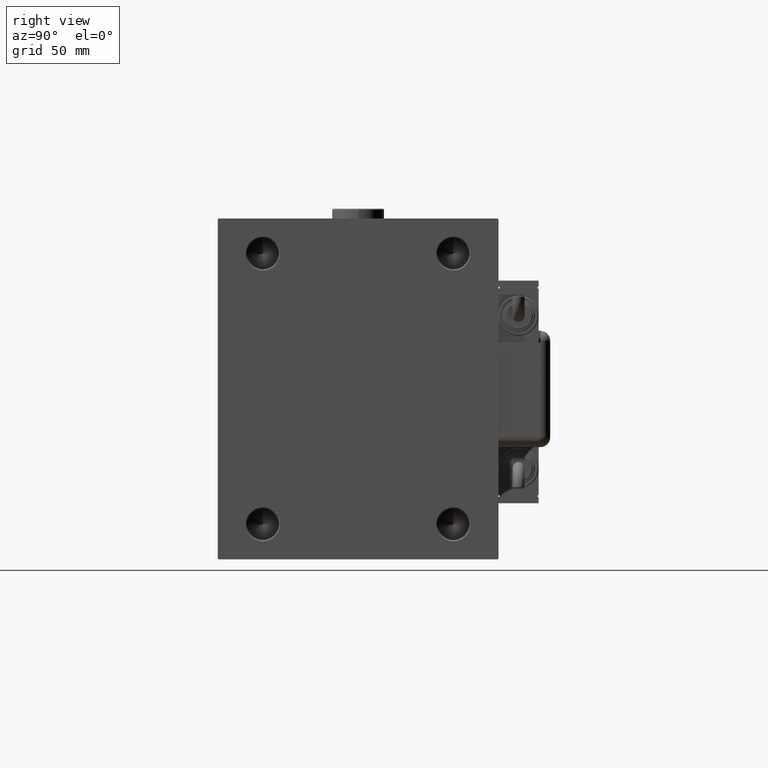
[diagram: clean part render]
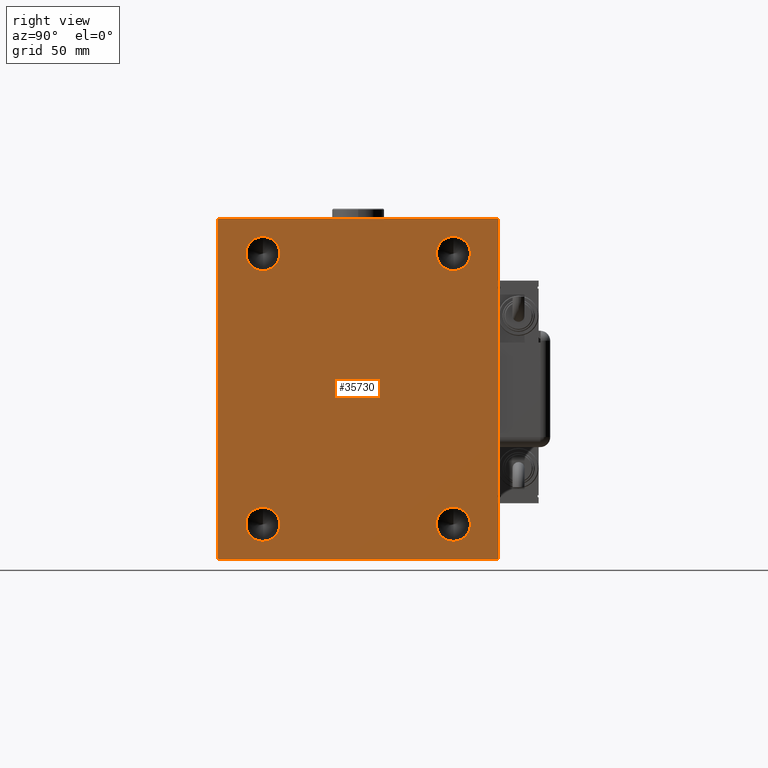
[diagram: same view with one face highlighted and labeled with its STEP entity id]
A machine part, right view. The second image highlights one B-rep face of the part: STEP entity #35730.
In plain terms, the highlighted planar face has unit normal (1, 0, 0).
Its self-contained STEP definition (entity closure, byte-faithful):
#68 = VERTEX_POINT ( 'NONE', #50883 ) ;
#1248 = CARTESIAN_POINT ( 'NONE',  ( 155.0000000000000000, 47.50000000000000000, -67.50000000000001421 ) ) ;
#1260 = AXIS2_PLACEMENT_3D ( 'NONE', #25930, #11568, #45406 ) ;
#1640 = CARTESIAN_POINT ( 'NONE',  ( 155.0000000000000000, -69.49999999999997158, 84.99999999999998579 ) ) ;
#1675 = ORIENTED_EDGE ( 'NONE', *, *, #59738, .F. ) ;
#1814 = EDGE_LOOP ( 'NONE', ( #36083, #14862 ) ) ;
#1871 = VERTEX_POINT ( 'NONE', #9417 ) ;
#2211 = CIRCLE ( 'NONE', #37909, 8.500000000000007105 ) ;
#2270 = DIRECTION ( 'NONE',  ( 0.000000000000000000, -1.000000000000000000, -1.982541115402065110E-16 ) ) ;
#3760 = DIRECTION ( 'NONE',  ( 1.000000000000000000, -0.000000000000000000, -0.000000000000000000 ) ) ;
#3966 = CARTESIAN_POINT ( 'NONE',  ( 155.0000000000000000, 47.50000000000000000, 58.99999999999997158 ) ) ;
#4008 = EDGE_LOOP ( 'NONE', ( #40196, #59347 ) ) ;
#4071 = EDGE_CURVE ( 'NONE', #5518, #34108, #43446, .T. ) ;
#4369 = CARTESIAN_POINT ( 'NONE',  ( 155.0000000000000000, -47.50000000000000000, 76.00000000000001421 ) ) ;
#4483 = DIRECTION ( 'NONE',  ( 1.000000000000000000, -0.000000000000000000, -0.000000000000000000 ) ) ;
#4514 = VECTOR ( 'NONE', #9899, 999.9999999999998863 ) ;
#4775 = CARTESIAN_POINT ( 'NONE',  ( 155.0000000000000000, 77.24999999999904787, -77.25000000000119371 ) ) ;
#5518 = VERTEX_POINT ( 'NONE', #5893 ) ;
#5893 = CARTESIAN_POINT ( 'NONE',  ( 155.0000000000000000, 70.00000000000001421, -84.50000000000000000 ) ) ;
#5994 = CARTESIAN_POINT ( 'NONE',  ( 155.0000000000000000, 77.25000000000289901, 77.24999999999647571 ) ) ;
#6742 = VECTOR ( 'NONE', #15320, 1000.000000000000000 ) ;
#6898 = EDGE_CURVE ( 'NONE', #55050, #34562, #18503, .T. ) ;
#7391 = VERTEX_POINT ( 'NONE', #9600 ) ;
#7514 = VECTOR ( 'NONE', #21631, 1000.000000000000000 ) ;
#8005 = CARTESIAN_POINT ( 'NONE',  ( 155.0000000000000000, 47.50000000000000000, -59.00000000000000000 ) ) ;
#8835 = DIRECTION ( 'NONE',  ( 1.000000000000000000, -0.000000000000000000, -0.000000000000000000 ) ) ;
#9417 = CARTESIAN_POINT ( 'NONE',  ( 155.0000000000000000, -47.50000000000000000, 58.99999999999997158 ) ) ;
#9600 = CARTESIAN_POINT ( 'NONE',  ( 155.0000000000000000, 69.50000000000000000, 85.00000000000001421 ) ) ;
#9884 = VERTEX_POINT ( 'NONE', #1640 ) ;
#9899 = DIRECTION ( 'NONE',  ( -0.000000000000000000, 0.7071067811865574537, 0.7071067811865376918 ) ) ;
#10250 = AXIS2_PLACEMENT_3D ( 'NONE', #26852, #41547, #25800 ) ;
#10501 = EDGE_CURVE ( 'NONE', #50844, #30552, #31868, .T. ) ;
#11233 = CARTESIAN_POINT ( 'NONE',  ( 155.0000000000000000, -77.25000000000098055, -77.24999999999883471 ) ) ;
#11413 = CARTESIAN_POINT ( 'NONE',  ( 155.0000000000000000, -77.24999999999803890, 77.25000000000234479 ) ) ;
#11568 = DIRECTION ( 'NONE',  ( 1.000000000000000000, -0.000000000000000000, -0.000000000000000000 ) ) ;
#11740 = CARTESIAN_POINT ( 'NONE',  ( 155.0000000000000000, 47.50000000000000000, -76.00000000000004263 ) ) ;
#11782 = DIRECTION ( 'NONE',  ( 1.000000000000000000, -0.000000000000000000, -0.000000000000000000 ) ) ;
#12184 = FACE_BOUND ( 'NONE', #45615, .T. ) ;
#12368 = CARTESIAN_POINT ( 'NONE',  ( 155.0000000000000000, 47.50000000000000000, 76.00000000000001421 ) ) ;
#13801 = EDGE_CURVE ( 'NONE', #22470, #43213, #51241, .T. ) ;
#14862 = ORIENTED_EDGE ( 'NONE', *, *, #43225, .F. ) ;
#15214 = EDGE_CURVE ( 'NONE', #34108, #7391, #34761, .T. ) ;
#15320 = DIRECTION ( 'NONE',  ( 0.000000000000000000, 1.000000000000000000, 0.000000000000000000 ) ) ;
#15543 = AXIS2_PLACEMENT_3D ( 'NONE', #53356, #4483, #18870 ) ;
#16182 = VECTOR ( 'NONE', #46914, 1000.000000000000000 ) ;
#16427 = ORIENTED_EDGE ( 'NONE', *, *, #28454, .T. ) ;
#16497 = CARTESIAN_POINT ( 'NONE',  ( 155.0000000000000000, -47.50000000000000000, -59.00000000000000000 ) ) ;
#17063 = CIRCLE ( 'NONE', #25203, 8.500000000000007105 ) ;
#17606 = AXIS2_PLACEMENT_3D ( 'NONE', #1248, #11782, #59055 ) ;
#17726 = EDGE_CURVE ( 'NONE', #9884, #68, #55151, .T. ) ;
#17803 = CIRCLE ( 'NONE', #53491, 8.500000000000007105 ) ;
#18426 = CARTESIAN_POINT ( 'NONE',  ( 155.0000000000000000, -47.50000000000000000, 67.49999999999998579 ) ) ;
#18503 = CIRCLE ( 'NONE', #54207, 8.500000000000007105 ) ;
#18870 = DIRECTION ( 'NONE',  ( 0.000000000000000000, 0.000000000000000000, -1.000000000000000000 ) ) ;
#19338 = DIRECTION ( 'NONE',  ( 1.000000000000000000, -0.000000000000000000, -0.000000000000000000 ) ) ;
#19446 = ORIENTED_EDGE ( 'NONE', *, *, #4071, .T. ) ;
#19718 = CARTESIAN_POINT ( 'NONE',  ( 155.0000000000000000, 47.50000000000000000, 67.49999999999998579 ) ) ;
#19779 = LINE ( 'NONE', #54889, #6742 ) ;
#20445 = ORIENTED_EDGE ( 'NONE', *, *, #30321, .T. ) ;
#20811 = LINE ( 'NONE', #46015, #32472 ) ;
#20849 = ORIENTED_EDGE ( 'NONE', *, *, #17726, .T. ) ;
#21434 = VECTOR ( 'NONE', #38047, 1000.000000000000000 ) ;
#21631 = DIRECTION ( 'NONE',  ( 0.000000000000000000, -0.7071067811865672237, -0.7071067811865279218 ) ) ;
#22470 = VERTEX_POINT ( 'NONE', #12368 ) ;
#23822 = DIRECTION ( 'NONE',  ( 1.000000000000000000, -0.000000000000000000, -0.000000000000000000 ) ) ;
#24451 = DIRECTION ( 'NONE',  ( 0.000000000000000000, 0.000000000000000000, -1.000000000000000000 ) ) ;
#25203 = AXIS2_PLACEMENT_3D ( 'NONE', #18426, #8835, #57369 ) ;
#25800 = DIRECTION ( 'NONE',  ( 0.000000000000000000, 0.000000000000000000, -1.000000000000000000 ) ) ;
#25930 = CARTESIAN_POINT ( 'NONE',  ( 155.0000000000000000, 47.50000000000000000, 67.49999999999998579 ) ) ;
#26516 = EDGE_LOOP ( 'NONE', ( #42029, #1675 ) ) ;
#26814 = LINE ( 'NONE', #60663, #16182 ) ;
#26852 = CARTESIAN_POINT ( 'NONE',  ( 155.0000000000000000, 0.000000000000000000, 0.000000000000000000 ) ) ;
#27621 = CARTESIAN_POINT ( 'NONE',  ( 155.0000000000000000, -47.50000000000000000, -67.50000000000001421 ) ) ;
#28454 = EDGE_CURVE ( 'NONE', #7391, #9884, #20811, .T. ) ;
#28637 = CIRCLE ( 'NONE', #15543, 8.500000000000007105 ) ;
#30181 = CARTESIAN_POINT ( 'NONE',  ( 155.0000000000000000, -69.50000000000000000, -85.00000000000000000 ) ) ;
#30321 = EDGE_CURVE ( 'NONE', #68, #58106, #26814, .T. ) ;
#30552 = VERTEX_POINT ( 'NONE', #11740 ) ;
#31407 = VECTOR ( 'NONE', #54353, 999.9999999999998863 ) ;
#31659 = FACE_OUTER_BOUND ( 'NONE', #44031, .T. ) ;
#31868 = CIRCLE ( 'NONE', #17606, 8.500000000000007105 ) ;
#32083 = ORIENTED_EDGE ( 'NONE', *, *, #10501, .F. ) ;
#32472 = VECTOR ( 'NONE', #2270, 1000.000000000000000 ) ;
#33313 = ORIENTED_EDGE ( 'NONE', *, *, #15214, .T. ) ;
#33363 = DIRECTION ( 'NONE',  ( 1.000000000000000000, -0.000000000000000000, -0.000000000000000000 ) ) ;
#34108 = VERTEX_POINT ( 'NONE', #36281 ) ;
#34562 = VERTEX_POINT ( 'NONE', #39339 ) ;
#34761 = LINE ( 'NONE', #5994, #50276 ) ;
#35730 = ADVANCED_FACE ( 'NONE', ( #55914, #41232, #60707, #12184, #31659 ), #51139, .T. ) ;
#36083 = ORIENTED_EDGE ( 'NONE', *, *, #6898, .F. ) ;
#36281 = CARTESIAN_POINT ( 'NONE',  ( 155.0000000000000000, 70.00000000000000000, 84.49999999999997158 ) ) ;
#37909 = AXIS2_PLACEMENT_3D ( 'NONE', #27621, #33363, #56993 ) ;
#38047 = DIRECTION ( 'NONE',  ( 0.000000000000000000, -8.163404592832031500E-17, 1.000000000000000000 ) ) ;
#39339 = CARTESIAN_POINT ( 'NONE',  ( 155.0000000000000000, -47.50000000000000000, -76.00000000000004263 ) ) ;
#39442 = CIRCLE ( 'NONE', #43520, 8.500000000000007105 ) ;
#40196 = ORIENTED_EDGE ( 'NONE', *, *, #13801, .F. ) ;
#40557 = EDGE_CURVE ( 'NONE', #30552, #50844, #28637, .T. ) ;
#41232 = FACE_BOUND ( 'NONE', #26516, .T. ) ;
#41547 = DIRECTION ( 'NONE',  ( 1.000000000000000000, 0.000000000000000000, 0.000000000000000000 ) ) ;
#42029 = ORIENTED_EDGE ( 'NONE', *, *, #60893, .F. ) ;
#42712 = DIRECTION ( 'NONE',  ( 0.000000000000000000, 0.000000000000000000, -1.000000000000000000 ) ) ;
#43213 = VERTEX_POINT ( 'NONE', #3966 ) ;
#43225 = EDGE_CURVE ( 'NONE', #34562, #55050, #2211, .T. ) ;
#43298 = CARTESIAN_POINT ( 'NONE',  ( 155.0000000000000000, -47.50000000000000000, 67.49999999999998579 ) ) ;
#43446 = LINE ( 'NONE', #62930, #21434 ) ;
#43520 = AXIS2_PLACEMENT_3D ( 'NONE', #43298, #23822, #24451 ) ;
#44031 = EDGE_LOOP ( 'NONE', ( #16427, #20849, #20445, #58904, #61379, #60928, #19446, #33313 ) ) ;
#44233 = DIRECTION ( 'NONE',  ( 0.000000000000000000, 0.000000000000000000, -1.000000000000000000 ) ) ;
#45406 = DIRECTION ( 'NONE',  ( 0.000000000000000000, 0.000000000000000000, -1.000000000000000000 ) ) ;
#45615 = EDGE_LOOP ( 'NONE', ( #32083, #56210 ) ) ;
#46015 = CARTESIAN_POINT ( 'NONE',  ( 155.0000000000000000, 70.00000000000000000, 85.00000000000001421 ) ) ;
#46914 = DIRECTION ( 'NONE',  ( 0.000000000000000000, 0.000000000000000000, -1.000000000000000000 ) ) ;
#47429 = VERTEX_POINT ( 'NONE', #4369 ) ;
#48481 = DIRECTION ( 'NONE',  ( -0.000000000000000000, -0.7071067811865181518, 0.7071067811865769936 ) ) ;
#49003 = EDGE_CURVE ( 'NONE', #59321, #5518, #57788, .T. ) ;
#49286 = EDGE_CURVE ( 'NONE', #43213, #22470, #17803, .T. ) ;
#50276 = VECTOR ( 'NONE', #48481, 1000.000000000000000 ) ;
#50844 = VERTEX_POINT ( 'NONE', #8005 ) ;
#50883 = CARTESIAN_POINT ( 'NONE',  ( 155.0000000000000000, -70.00000000000000000, 84.49999999999998579 ) ) ;
#51139 = PLANE ( 'NONE',  #10250 ) ;
#51241 = CIRCLE ( 'NONE', #1260, 8.500000000000007105 ) ;
#53356 = CARTESIAN_POINT ( 'NONE',  ( 155.0000000000000000, 47.50000000000000000, -67.50000000000001421 ) ) ;
#53491 = AXIS2_PLACEMENT_3D ( 'NONE', #19718, #3760, #42712 ) ;
#54207 = AXIS2_PLACEMENT_3D ( 'NONE', #63080, #19338, #44233 ) ;
#54353 = DIRECTION ( 'NONE',  ( -0.000000000000000000, 0.7071067811865376918, -0.7071067811865574537 ) ) ;
#54665 = LINE ( 'NONE', #11233, #31407 ) ;
#54889 = CARTESIAN_POINT ( 'NONE',  ( 155.0000000000000000, -70.00000000000000000, -85.00000000000000000 ) ) ;
#55050 = VERTEX_POINT ( 'NONE', #16497 ) ;
#55151 = LINE ( 'NONE', #11413, #7514 ) ;
#55914 = FACE_BOUND ( 'NONE', #4008, .T. ) ;
#55947 = CARTESIAN_POINT ( 'NONE',  ( 155.0000000000000000, -70.00000000000000000, -84.49999999999998579 ) ) ;
#56210 = ORIENTED_EDGE ( 'NONE', *, *, #40557, .F. ) ;
#56993 = DIRECTION ( 'NONE',  ( 0.000000000000000000, 0.000000000000000000, -1.000000000000000000 ) ) ;
#57369 = DIRECTION ( 'NONE',  ( 0.000000000000000000, 0.000000000000000000, -1.000000000000000000 ) ) ;
#57683 = VERTEX_POINT ( 'NONE', #30181 ) ;
#57788 = LINE ( 'NONE', #4775, #4514 ) ;
#58106 = VERTEX_POINT ( 'NONE', #55947 ) ;
#58209 = EDGE_CURVE ( 'NONE', #57683, #59321, #19779, .T. ) ;
#58904 = ORIENTED_EDGE ( 'NONE', *, *, #62774, .T. ) ;
#59055 = DIRECTION ( 'NONE',  ( 0.000000000000000000, 0.000000000000000000, -1.000000000000000000 ) ) ;
#59321 = VERTEX_POINT ( 'NONE', #60980 ) ;
#59347 = ORIENTED_EDGE ( 'NONE', *, *, #49286, .F. ) ;
#59738 = EDGE_CURVE ( 'NONE', #1871, #47429, #39442, .T. ) ;
#60663 = CARTESIAN_POINT ( 'NONE',  ( 155.0000000000000000, -70.00000000000000000, 84.99999999999998579 ) ) ;
#60707 = FACE_BOUND ( 'NONE', #1814, .T. ) ;
#60893 = EDGE_CURVE ( 'NONE', #47429, #1871, #17063, .T. ) ;
#60928 = ORIENTED_EDGE ( 'NONE', *, *, #49003, .T. ) ;
#60980 = CARTESIAN_POINT ( 'NONE',  ( 155.0000000000000000, 69.50000000000000000, -85.00000000000000000 ) ) ;
#61379 = ORIENTED_EDGE ( 'NONE', *, *, #58209, .T. ) ;
#62774 = EDGE_CURVE ( 'NONE', #58106, #57683, #54665, .T. ) ;
#62930 = CARTESIAN_POINT ( 'NONE',  ( 155.0000000000000000, 70.00000000000001421, -85.00000000000000000 ) ) ;
#63080 = CARTESIAN_POINT ( 'NONE',  ( 155.0000000000000000, -47.50000000000000000, -67.50000000000001421 ) ) ;